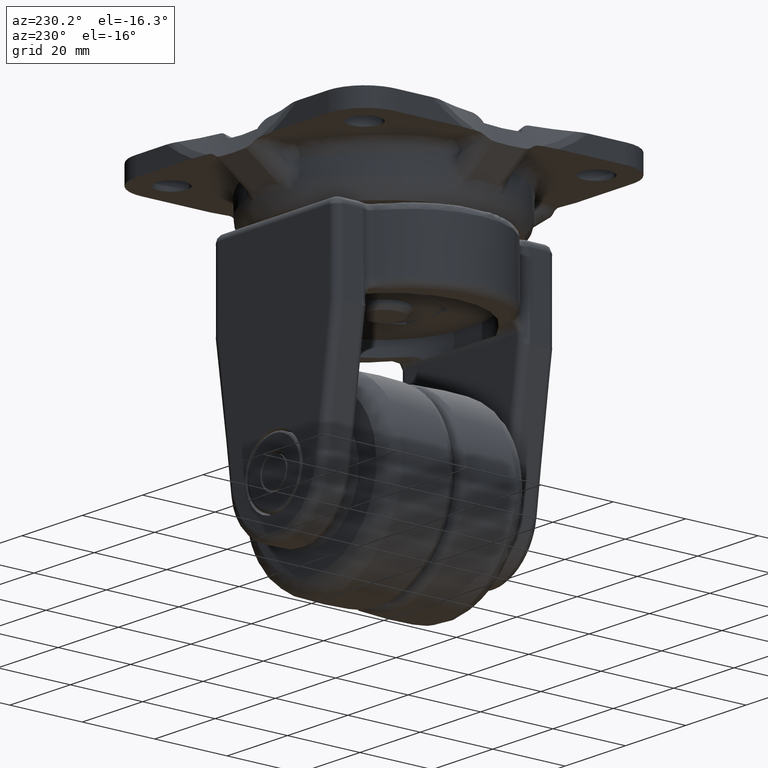
[diagram: clean part render]
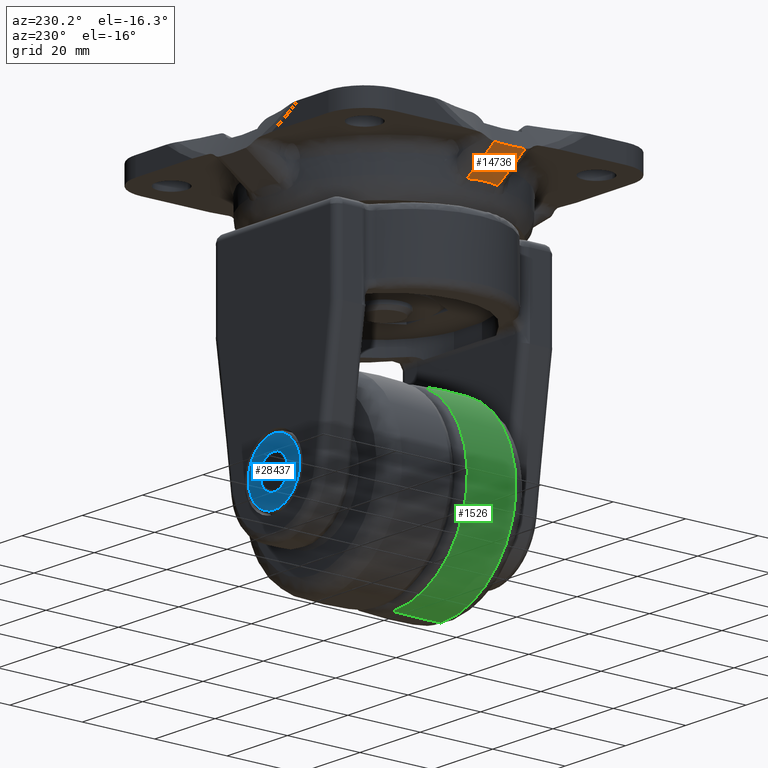
[diagram: same view with three faces highlighted in distinct colors, each labeled with its STEP entity id]
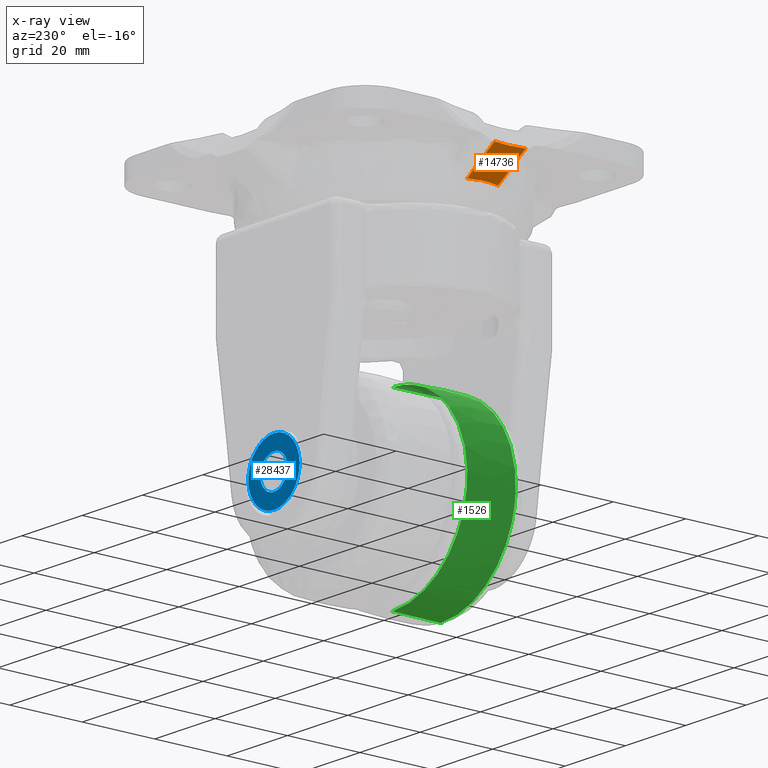
[diagram: x-ray of the same camera — body ghosted, the three highlighted faces saturated]
A machine part, auxiliary view with three faces highlighted in distinct colors.
The next image is the same camera in x-ray (body ghosted, the three faces saturated) — at least one of them is partly hidden behind the body in this view.
Their STEP definitions:

[orange] entity #14736 — the highlighted face is a freeform B-spline surface patch.
#12176=CARTESIAN_POINT('',(-32.679592035870748,-4.278754000000105,5.364286986285680));
#12177=VERTEX_POINT('',#12176);
#12178=CARTESIAN_POINT('',(-41.775232667972453,-4.278754000000075,11.499374509110980));
#12179=VERTEX_POINT('',#12178);
#12180=CARTESIAN_POINT('',(-32.679592035870748,-4.278754000000105,5.364286986285680));
#12181=CARTESIAN_POINT('',(-41.775232667972453,-4.278754000000075,11.499374509110980));
#12182=QUASI_UNIFORM_CURVE('',1,(#12180,#12181),.UNSPECIFIED.,.F.,.U.);
#12183=EDGE_CURVE('',#12177,#12179,#12182,.T.);
#12247=CARTESIAN_POINT('',(-41.775232667972453,4.278754000000125,11.499374509110980));
#12248=VERTEX_POINT('',#12247);
#12311=CARTESIAN_POINT('',(-32.679592035870748,4.278754000000105,5.364286986285680));
#12312=VERTEX_POINT('',#12311);
#12338=CARTESIAN_POINT('',(-41.775232667972453,4.278754000000125,11.499374509110980));
#12339=CARTESIAN_POINT('',(-32.679592035870748,4.278754000000105,5.364286986285680));
#12340=QUASI_UNIFORM_CURVE('',1,(#12338,#12339),.UNSPECIFIED.,.F.,.U.);
#12341=EDGE_CURVE('',#12248,#12312,#12340,.T.);
#14276=CARTESIAN_POINT('',(-41.775232667972382,-4.278754000000090,11.499374509110950));
#14277=CARTESIAN_POINT('',(-41.499206862530031,2.246467E-013,11.313192738805466));
#14278=CARTESIAN_POINT('',(-41.775232667972432,4.278754000000581,11.499374509110980));
#14286=(BOUNDED_CURVE()B_SPLINE_CURVE(2,(#14276,#14277,#14278),.UNSPECIFIED.,.F.,.U.)CURVE()GEOMETRIC_REPRESENTATION_ITEM()QUASI_UNIFORM_CURVE()RATIONAL_B_SPLINE_CURVE((1.0,0.998214850342927,1.0))REPRESENTATION_ITEM(''));
#14287=EDGE_CURVE('',#12179,#12248,#14286,.T.);
#14714=CARTESIAN_POINT('',(-32.225264803926393,-4.706201508014004,5.057839376411531));
#14715=CARTESIAN_POINT('',(-42.229560143880903,-4.706201508014004,11.805822283540991));
#14716=CARTESIAN_POINT('',(-32.225264803926393,4.706201737544277,5.057839376411531));
#14717=CARTESIAN_POINT('',(-42.229560143880903,4.706201737544277,11.805822283540991));
#14718=B_SPLINE_SURFACE_WITH_KNOTS('',1,1,((#14714,#14716),(#14715,#14717)),.UNSPECIFIED.,.F.,.F.,.U.,(2,2),(2,2),(0.0,12.067360878168300),(0.0,9.412403245558281),.UNSPECIFIED.);
#14719=ORIENTED_EDGE('',*,*,#12341,.T.);
#14720=CARTESIAN_POINT('',(-32.679592035870748,4.278754000000110,5.364286986285680));
#14721=CARTESIAN_POINT('',(-32.781837528111481,3.565628333333427,5.433252446673078));
#14722=CARTESIAN_POINT('',(-32.857203012905060,2.852502666666737,5.484087111773704));
#14723=CARTESIAN_POINT('',(-32.957379230584202,1.426251333333369,5.551656828743179));
#14724=CARTESIAN_POINT('',(-33.006970105864241,8.673617E-016,5.585106298932536));
#14725=CARTESIAN_POINT('',(-32.957379230584188,-1.426251333333367,5.551656828743176));
#14726=CARTESIAN_POINT('',(-32.857203012905053,-2.852502666666735,5.484087111773704));
#14727=CARTESIAN_POINT('',(-32.781837528111481,-3.565628333333426,5.433252446673077));
#14728=CARTESIAN_POINT('',(-32.679592035870748,-4.278754000000110,5.364286986285680));
#14729=B_SPLINE_CURVE_WITH_KNOTS('',3,(#14720,#14721,#14722,#14723,#14724,#14725,#14726,#14727,#14728),.UNSPECIFIED.,.F.,.U.,(4,2,1,2,4),(0.0,0.250000000000000,0.500000000000000,0.750000000000000,1.0),.UNSPECIFIED.);
#14730=EDGE_CURVE('',#12312,#12177,#14729,.T.);
#14731=ORIENTED_EDGE('',*,*,#14730,.T.);
#14732=ORIENTED_EDGE('',*,*,#12183,.T.);
#14733=ORIENTED_EDGE('',*,*,#14287,.T.);
#14734=EDGE_LOOP('',(#14719,#14731,#14732,#14733));
#14735=FACE_OUTER_BOUND('',#14734,.T.);
#14736=ADVANCED_FACE('',(#14735),#14718,.T.);

[blue] entity #28437 — the highlighted face is a freeform B-spline surface patch.
#28002=CARTESIAN_POINT('',(-4.486128001825065,30.400000000066001,-56.646934068713747));
#28003=VERTEX_POINT('',#28002);
#28009=CARTESIAN_POINT('',(3.552714E-015,30.399999999999999,-52.500000000000007));
#28010=VERTEX_POINT('',#28009);
#28011=CARTESIAN_POINT('',(3.552714E-015,30.399999999999999,-52.500000000000007));
#28012=CARTESIAN_POINT('',(-4.159757212024402,30.400000000033003,-52.499999999997407));
#28013=CARTESIAN_POINT('',(-4.486128001825065,30.400000000065997,-56.646934068713747));
#28021=(BOUNDED_CURVE()B_SPLINE_CURVE(2,(#28011,#28012,#28013),.UNSPECIFIED.,.F.,.U.)B_SPLINE_CURVE_WITH_KNOTS((3,3),(0.0,0.236331300613440),.UNSPECIFIED.)CURVE()GEOMETRIC_REPRESENTATION_ITEM()RATIONAL_B_SPLINE_CURVE((1.0,0.723120658627839,0.969723356131482))REPRESENTATION_ITEM(''));
#28022=EDGE_CURVE('',#28010,#28003,#28021,.T.);
#28024=CARTESIAN_POINT('',(4.486128001825073,30.400000000066001,-57.353065931286253));
#28025=VERTEX_POINT('',#28024);
#28026=CARTESIAN_POINT('',(4.486128001825073,30.400000000066004,-57.353065931286253));
#28027=CARTESIAN_POINT('',(4.500000000064608,30.400000000064804,-57.176805481793657));
#28028=CARTESIAN_POINT('',(4.500000000063315,30.400000000063510,-57.000000000004981));
#28029=CARTESIAN_POINT('',(4.500000000030417,30.400000000030502,-52.500000000002402));
#28030=CARTESIAN_POINT('',(3.552714E-015,30.399999999999999,-52.500000000000007));
#28038=(BOUNDED_CURVE()B_SPLINE_CURVE(2,(#28026,#28027,#28028,#28029,#28030),.UNSPECIFIED.,.F.,.U.)B_SPLINE_CURVE_WITH_KNOTS((3,2,3),(0.736331300613440,0.750000000000000,1.0),.UNSPECIFIED.)CURVE()GEOMETRIC_REPRESENTATION_ITEM()RATIONAL_B_SPLINE_CURVE((0.969723356131482,0.983986122558708,1.0,0.707106781186547,1.0))REPRESENTATION_ITEM(''));
#28039=EDGE_CURVE('',#28025,#28010,#28038,.T.);
#28073=CARTESIAN_POINT('',(3.552714E-015,30.399999999999999,-61.500000000000000));
#28074=VERTEX_POINT('',#28073);
#28075=CARTESIAN_POINT('',(3.552714E-015,30.399999999999999,-61.500000000000000));
#28076=CARTESIAN_POINT('',(4.159757212024406,30.400000000033003,-61.500000000002593));
#28077=CARTESIAN_POINT('',(4.486128001825073,30.400000000066004,-57.353065931286253));
#28085=(BOUNDED_CURVE()B_SPLINE_CURVE(2,(#28075,#28076,#28077),.UNSPECIFIED.,.F.,.U.)B_SPLINE_CURVE_WITH_KNOTS((3,3),(0.500000000000000,0.736331300613440),.UNSPECIFIED.)CURVE()GEOMETRIC_REPRESENTATION_ITEM()RATIONAL_B_SPLINE_CURVE((1.0,0.723120658627839,0.969723356131482))REPRESENTATION_ITEM(''));
#28086=EDGE_CURVE('',#28074,#28025,#28085,.T.);
#28088=CARTESIAN_POINT('',(-4.486128001825065,30.400000000066004,-56.646934068713755));
#28089=CARTESIAN_POINT('',(-4.500000000064601,30.400000000064800,-56.823194518206343));
#28090=CARTESIAN_POINT('',(-4.500000000063308,30.400000000063510,-56.999999999995033));
#28091=CARTESIAN_POINT('',(-4.500000000030410,30.400000000030502,-61.499999999997627));
#28092=CARTESIAN_POINT('',(3.552714E-015,30.399999999999999,-61.500000000000000));
#28100=(BOUNDED_CURVE()B_SPLINE_CURVE(2,(#28088,#28089,#28090,#28091,#28092),.UNSPECIFIED.,.F.,.U.)B_SPLINE_CURVE_WITH_KNOTS((3,2,3),(0.236331300613440,0.250000000000000,0.500000000000000),.UNSPECIFIED.)CURVE()GEOMETRIC_REPRESENTATION_ITEM()RATIONAL_B_SPLINE_CURVE((0.969723356131482,0.983986122558708,1.0,0.707106781186547,1.0))REPRESENTATION_ITEM(''));
#28101=EDGE_CURVE('',#28003,#28074,#28100,.T.);
#28288=CARTESIAN_POINT('',(8.499328949816160,30.399999999999991,-57.106811341853792));
#28289=VERTEX_POINT('',#28288);
#28303=CARTESIAN_POINT('',(0.0,30.399999999999999,-48.500000000000000));
#28304=VERTEX_POINT('',#28303);
#28305=CARTESIAN_POINT('',(0.0,30.399999999999999,-48.500000000000000));
#28306=CARTESIAN_POINT('',(8.500000036591157,30.399999999999991,-48.500000000459842));
#28307=CARTESIAN_POINT('',(8.500000073645046,30.399999999999991,-57.000000000925503));
#28308=CARTESIAN_POINT('',(8.500000073877864,30.399999999999984,-57.053407779816595));
#28309=CARTESIAN_POINT('',(8.499328949816160,30.399999999999988,-57.106811341853792));
#28317=(BOUNDED_CURVE()B_SPLINE_CURVE(2,(#28305,#28306,#28307,#28308,#28309),.UNSPECIFIED.,.F.,.U.)B_SPLINE_CURVE_WITH_KNOTS((3,2,3),(0.500000000000000,0.750000000000000,0.752215704117876),.UNSPECIFIED.)CURVE()GEOMETRIC_REPRESENTATION_ITEM()RATIONAL_B_SPLINE_CURVE((1.0,0.707106781186548,1.0,0.997404141155909,0.994854295552860))REPRESENTATION_ITEM(''));
#28318=EDGE_CURVE('',#28304,#28289,#28317,.T.);
#28320=CARTESIAN_POINT('',(-8.499328949816160,30.399999999999981,-56.893188658146229));
#28321=VERTEX_POINT('',#28320);
#28322=CARTESIAN_POINT('',(-8.499328949816160,30.399999999999988,-56.893188658146229));
#28323=CARTESIAN_POINT('',(-8.393851439375695,30.399999999999995,-48.499999999534339));
#28324=CARTESIAN_POINT('',(0.0,30.399999999999999,-48.500000000000000));
#28332=(BOUNDED_CURVE()B_SPLINE_CURVE(2,(#28322,#28323,#28324),.UNSPECIFIED.,.F.,.U.)B_SPLINE_CURVE_WITH_KNOTS((3,3),(0.252215704117875,0.500000000000000),.UNSPECIFIED.)CURVE()GEOMETRIC_REPRESENTATION_ITEM()RATIONAL_B_SPLINE_CURVE((0.994854295552860,0.709702640030639,1.0))REPRESENTATION_ITEM(''));
#28333=EDGE_CURVE('',#28321,#28304,#28332,.T.);
#28386=CARTESIAN_POINT('',(0.0,30.399999999999999,-65.500000000000000));
#28387=VERTEX_POINT('',#28386);
#28388=CARTESIAN_POINT('',(0.0,30.399999999999999,-65.500000000000000));
#28389=CARTESIAN_POINT('',(-8.500000036591157,30.399999999999991,-65.499999999540179));
#28390=CARTESIAN_POINT('',(-8.500000073645044,30.399999999999981,-56.999999999074497));
#28391=CARTESIAN_POINT('',(-8.500000073877862,30.399999999999984,-56.946592220183419));
#28392=CARTESIAN_POINT('',(-8.499328949816160,30.399999999999988,-56.893188658146222));
#28400=(BOUNDED_CURVE()B_SPLINE_CURVE(2,(#28388,#28389,#28390,#28391,#28392),.UNSPECIFIED.,.F.,.U.)B_SPLINE_CURVE_WITH_KNOTS((3,2,3),(0.0,0.250000000000000,0.252215704117875),.UNSPECIFIED.)CURVE()GEOMETRIC_REPRESENTATION_ITEM()RATIONAL_B_SPLINE_CURVE((1.0,0.707106781186548,1.0,0.997404141155909,0.994854295552861))REPRESENTATION_ITEM(''));
#28401=EDGE_CURVE('',#28387,#28321,#28400,.T.);
#28403=CARTESIAN_POINT('',(8.499328949816160,30.399999999999988,-57.106811341853785));
#28404=CARTESIAN_POINT('',(8.393851439375688,30.399999999999984,-65.500000000465661));
#28405=CARTESIAN_POINT('',(0.0,30.399999999999999,-65.500000000000000));
#28413=(BOUNDED_CURVE()B_SPLINE_CURVE(2,(#28403,#28404,#28405),.UNSPECIFIED.,.F.,.U.)B_SPLINE_CURVE_WITH_KNOTS((3,3),(0.752215704117876,1.0),.UNSPECIFIED.)CURVE()GEOMETRIC_REPRESENTATION_ITEM()RATIONAL_B_SPLINE_CURVE((0.994854295552860,0.709702640030639,1.0))REPRESENTATION_ITEM(''));
#28414=EDGE_CURVE('',#28289,#28387,#28413,.T.);
#28420=CARTESIAN_POINT('',(-9.348411878956098,30.399999999999999,-47.650850032949300));
#28421=CARTESIAN_POINT('',(-9.348411878956100,30.399999999999999,-66.349150423026231));
#28422=CARTESIAN_POINT('',(9.348412334895633,30.399999999999999,-47.650850032949300));
#28423=CARTESIAN_POINT('',(9.348412334895633,30.399999999999999,-66.349150423026231));
#28424=B_SPLINE_SURFACE_WITH_KNOTS('',1,1,((#28420,#28422),(#28421,#28423)),.UNSPECIFIED.,.F.,.F.,.U.,(2,2),(2,2),(0.0,18.698300390076930),(0.0,18.696824213851730),.UNSPECIFIED.);
#28425=ORIENTED_EDGE('',*,*,#28401,.T.);
#28426=ORIENTED_EDGE('',*,*,#28333,.T.);
#28427=ORIENTED_EDGE('',*,*,#28318,.T.);
#28428=ORIENTED_EDGE('',*,*,#28414,.T.);
#28429=EDGE_LOOP('',(#28425,#28426,#28427,#28428));
#28430=FACE_OUTER_BOUND('',#28429,.T.);
#28431=ORIENTED_EDGE('',*,*,#28086,.T.);
#28432=ORIENTED_EDGE('',*,*,#28039,.T.);
#28433=ORIENTED_EDGE('',*,*,#28022,.T.);
#28434=ORIENTED_EDGE('',*,*,#28101,.T.);
#28435=EDGE_LOOP('',(#28431,#28432,#28433,#28434));
#28436=FACE_BOUND('',#28435,.T.);
#28437=ADVANCED_FACE('',(#28430,#28436),#28424,.F.);

[green] entity #1526 — the highlighted face is a freeform B-spline surface patch.
#1238=CARTESIAN_POINT('',(0.0,-2.378045495276406,-81.767406839799008));
#1239=VERTEX_POINT('',#1238);
#1253=CARTESIAN_POINT('',(-24.749808730554779,-2.378045524284849,-56.066511919064077));
#1254=VERTEX_POINT('',#1253);
#1255=CARTESIAN_POINT('',(0.0,-2.378045495276406,-81.767406839799008));
#1256=CARTESIAN_POINT('',(-24.767406830098370,-2.378045505110721,-81.767406845889894));
#1257=CARTESIAN_POINT('',(-24.767406662403349,-2.378045523595155,-57.000000143871191));
#1258=CARTESIAN_POINT('',(-24.767406659241988,-2.378045523943619,-56.533090155258691));
#1259=CARTESIAN_POINT('',(-24.749808730554772,-2.378045524284849,-56.066511919064084));
#1267=(BOUNDED_CURVE()B_SPLINE_CURVE(2,(#1255,#1256,#1257,#1258,#1259),.UNSPECIFIED.,.F.,.U.)B_SPLINE_CURVE_WITH_KNOTS((3,2,3),(0.500000000000000,0.750000000000000,0.756613472415875),.UNSPECIFIED.)CURVE()GEOMETRIC_REPRESENTATION_ITEM()RATIONAL_B_SPLINE_CURVE((1.0,0.707106781186547,1.0,0.992251835106321,0.984913608411026))REPRESENTATION_ITEM(''));
#1268=EDGE_CURVE('',#1239,#1254,#1267,.T.);
#1330=CARTESIAN_POINT('',(0.0,-2.378045511820819,-32.232593423111673));
#1331=VERTEX_POINT('',#1330);
#1351=CARTESIAN_POINT('',(-24.749808730554772,-2.378045524284849,-56.066511919064084));
#1352=CARTESIAN_POINT('',(-23.850865285781826,-2.378045522033046,-32.232593429436626));
#1353=CARTESIAN_POINT('',(0.0,-2.378045511820819,-32.232593423111673));
#1361=(BOUNDED_CURVE()B_SPLINE_CURVE(2,(#1351,#1352,#1353),.UNSPECIFIED.,.F.,.U.)B_SPLINE_CURVE_WITH_KNOTS((3,3),(0.756613472415875,1.0),.UNSPECIFIED.)CURVE()GEOMETRIC_REPRESENTATION_ITEM()RATIONAL_B_SPLINE_CURVE((0.984913608411026,0.714854946080226,1.0))REPRESENTATION_ITEM(''));
#1362=EDGE_CURVE('',#1254,#1331,#1361,.T.);
#1396=CARTESIAN_POINT('',(0.0,-15.681819454892530,-32.129199242408092));
#1397=VERTEX_POINT('',#1396);
#1398=CARTESIAN_POINT('',(0.0,-2.378045511820819,-32.232593423111666));
#1399=CARTESIAN_POINT('',(0.0,-9.027177432836536,-31.826402516787073));
#1400=CARTESIAN_POINT('',(0.0,-15.681819454892535,-32.129199242408092));
#1408=(BOUNDED_CURVE()B_SPLINE_CURVE(2,(#1398,#1399,#1400),.UNSPECIFIED.,.F.,.U.)B_SPLINE_CURVE_WITH_KNOTS((3,3),(0.454225685804975,0.534108543946522),.UNSPECIFIED.)CURVE()GEOMETRIC_REPRESENTATION_ITEM()RATIONAL_B_SPLINE_CURVE((0.900838115136010,0.899375481917063,0.900465357108061))REPRESENTATION_ITEM(''));
#1409=EDGE_CURVE('',#1331,#1397,#1408,.T.);
#1426=CARTESIAN_POINT('',(0.0,-15.681819454876001,-81.870800757592662));
#1427=VERTEX_POINT('',#1426);
#1443=CARTESIAN_POINT('',(7.105427E-015,-2.378045495276406,-81.767406839799008));
#1444=CARTESIAN_POINT('',(0.0,-9.027177424555164,-82.173597614693463));
#1445=CARTESIAN_POINT('',(0.0,-15.681819454876001,-81.870800757592662));
#1453=(BOUNDED_CURVE()B_SPLINE_CURVE(2,(#1443,#1444,#1445),.UNSPECIFIED.,.F.,.U.)B_SPLINE_CURVE_WITH_KNOTS((3,3),(0.454225685802077,0.534108543946423),.UNSPECIFIED.)CURVE()GEOMETRIC_REPRESENTATION_ITEM()RATIONAL_B_SPLINE_CURVE((0.900838115136116,0.899375481917025,0.900465357108058))REPRESENTATION_ITEM(''));
#1454=EDGE_CURVE('',#1239,#1427,#1453,.T.);
#1461=CARTESIAN_POINT('',(0.691234133802077,-1.715042613750552,-81.725135722948906));
#1462=CARTESIAN_POINT('',(0.704812836191230,-9.027030856080547,-82.210839832592256));
#1463=CARTESIAN_POINT('',(0.694412522442221,-16.345684126857776,-81.838825262664741));
#1464=CARTESIAN_POINT('',(0.347629854170229,-1.715042613750552,-81.725135722948906));
#1465=CARTESIAN_POINT('',(0.354458744846383,-9.027030856080545,-82.210839832592271));
#1466=CARTESIAN_POINT('',(0.349228303560146,-16.345684126857780,-81.838825262664756));
#1467=CARTESIAN_POINT('',(-24.725135722948909,-1.715042613750555,-81.725135722948920));
#1468=CARTESIAN_POINT('',(-25.210839832592260,-9.027030856080549,-82.210839832592285));
#1469=CARTESIAN_POINT('',(-24.838825262664734,-16.345684126857766,-81.838825262664756));
#1470=CARTESIAN_POINT('',(-24.725135722948938,-1.715042613750552,-57.000000000000007));
#1471=CARTESIAN_POINT('',(-25.210839832592296,-9.027030856080547,-57.000000000000007));
#1472=CARTESIAN_POINT('',(-24.838825262664770,-16.345684126857769,-57.0));
#1473=CARTESIAN_POINT('',(-24.725135722948909,-1.715042613750555,-32.274864277051087));
#1474=CARTESIAN_POINT('',(-25.210839832592260,-9.027030856080549,-31.789160167407740));
#1475=CARTESIAN_POINT('',(-24.838825262664734,-16.345684126857766,-32.161174737335251));
#1476=CARTESIAN_POINT('',(0.347629854170236,-1.715042613750551,-32.274864277051087));
#1477=CARTESIAN_POINT('',(0.354458744846390,-9.027030856080547,-31.789160167407729));
#1478=CARTESIAN_POINT('',(0.349228303560160,-16.345684126857776,-32.161174737335259));
#1479=CARTESIAN_POINT('',(0.691234133802098,-1.715042613750552,-32.274864277051094));
#1480=CARTESIAN_POINT('',(0.704812836191259,-9.027030856080547,-31.789160167407736));
#1481=CARTESIAN_POINT('',(0.694412522442242,-16.345684126857769,-32.161174737335251));
#1489=(BOUNDED_SURFACE()B_SPLINE_SURFACE(2,2,((#1461,#1464,#1467,#1470,#1473,#1476,#1479),(#1462,#1465,#1468,#1471,#1474,#1477,#1480),(#1463,#1466,#1469,#1472,#1475,#1478,#1481)),.UNSPECIFIED.,.F.,.F.,.U.)B_SPLINE_SURFACE_WITH_KNOTS((3,3),(3,1,2,1,3),(0.0,14.643632760301520),(0.0,0.828301858622893,42.243394789767081,83.658487720911268,84.486789579534189),.UNSPECIFIED.)GEOMETRIC_REPRESENTATION_ITEM()RATIONAL_B_SPLINE_SURFACE(((0.911546362004448,0.906268481262308,0.637096563413150,0.900990600520167,0.637096563413150,0.906268481262308,0.911546362004448),(0.909776887051036,0.904509251621882,0.635859844735029,0.899241616192728,0.635859844735029,0.904509251621882,0.909776887051036),(0.911131561437655,0.905856082403222,0.636806651647143,0.900580603368789,0.636806651647143,0.905856082403222,0.911131561437655)))REPRESENTATION_ITEM('')SURFACE());
#1490=ORIENTED_EDGE('',*,*,#1409,.F.);
#1491=ORIENTED_EDGE('',*,*,#1362,.F.);
#1492=ORIENTED_EDGE('',*,*,#1268,.F.);
#1493=ORIENTED_EDGE('',*,*,#1454,.T.);
#1494=CARTESIAN_POINT('',(-24.821723759906181,-15.681819454066479,-58.561650491124503));
#1495=VERTEX_POINT('',#1494);
#1496=CARTESIAN_POINT('',(0.0,-15.681819454876001,-81.870800757592662));
#1497=CARTESIAN_POINT('',(-23.355236356424275,-15.681819454467373,-81.870800756663598));
#1498=CARTESIAN_POINT('',(-24.821723759906178,-15.681819454066481,-58.561650491124503));
#1506=(BOUNDED_CURVE()B_SPLINE_CURVE(2,(#1496,#1497,#1498),.UNSPECIFIED.,.F.,.U.)B_SPLINE_CURVE_WITH_KNOTS((3,3),(0.500000000000000,0.739031910793835),.UNSPECIFIED.)CURVE()GEOMETRIC_REPRESENTATION_ITEM()RATIONAL_B_SPLINE_CURVE((1.0,0.719956696993854,0.975427680568317))REPRESENTATION_ITEM(''));
#1507=EDGE_CURVE('',#1427,#1495,#1506,.T.);
#1508=ORIENTED_EDGE('',*,*,#1507,.T.);
#1509=CARTESIAN_POINT('',(-24.821723759906178,-15.681819454066481,-58.561650491124503));
#1510=CARTESIAN_POINT('',(-24.870800603712571,-15.681819454078793,-57.781596395629023));
#1511=CARTESIAN_POINT('',(-24.870800604176651,-15.681819454091899,-56.999999998198859));
#1512=CARTESIAN_POINT('',(-24.870800618943807,-15.681819454508805,-32.129199241535645));
#1513=CARTESIAN_POINT('',(0.0,-15.681819454892530,-32.129199242408092));
#1521=(BOUNDED_CURVE()B_SPLINE_CURVE(2,(#1509,#1510,#1511,#1512,#1513),.UNSPECIFIED.,.F.,.U.)B_SPLINE_CURVE_WITH_KNOTS((3,2,3),(0.739031910793835,0.750000000000000,1.0),.UNSPECIFIED.)CURVE()GEOMETRIC_REPRESENTATION_ITEM()RATIONAL_B_SPLINE_CURVE((0.975427680568317,0.987150084192694,1.0,0.707106781186547,1.0))REPRESENTATION_ITEM(''));
#1522=EDGE_CURVE('',#1495,#1397,#1521,.T.);
#1523=ORIENTED_EDGE('',*,*,#1522,.T.);
#1524=EDGE_LOOP('',(#1490,#1491,#1492,#1493,#1508,#1523));
#1525=FACE_OUTER_BOUND('',#1524,.T.);
#1526=ADVANCED_FACE('',(#1525),#1489,.T.);